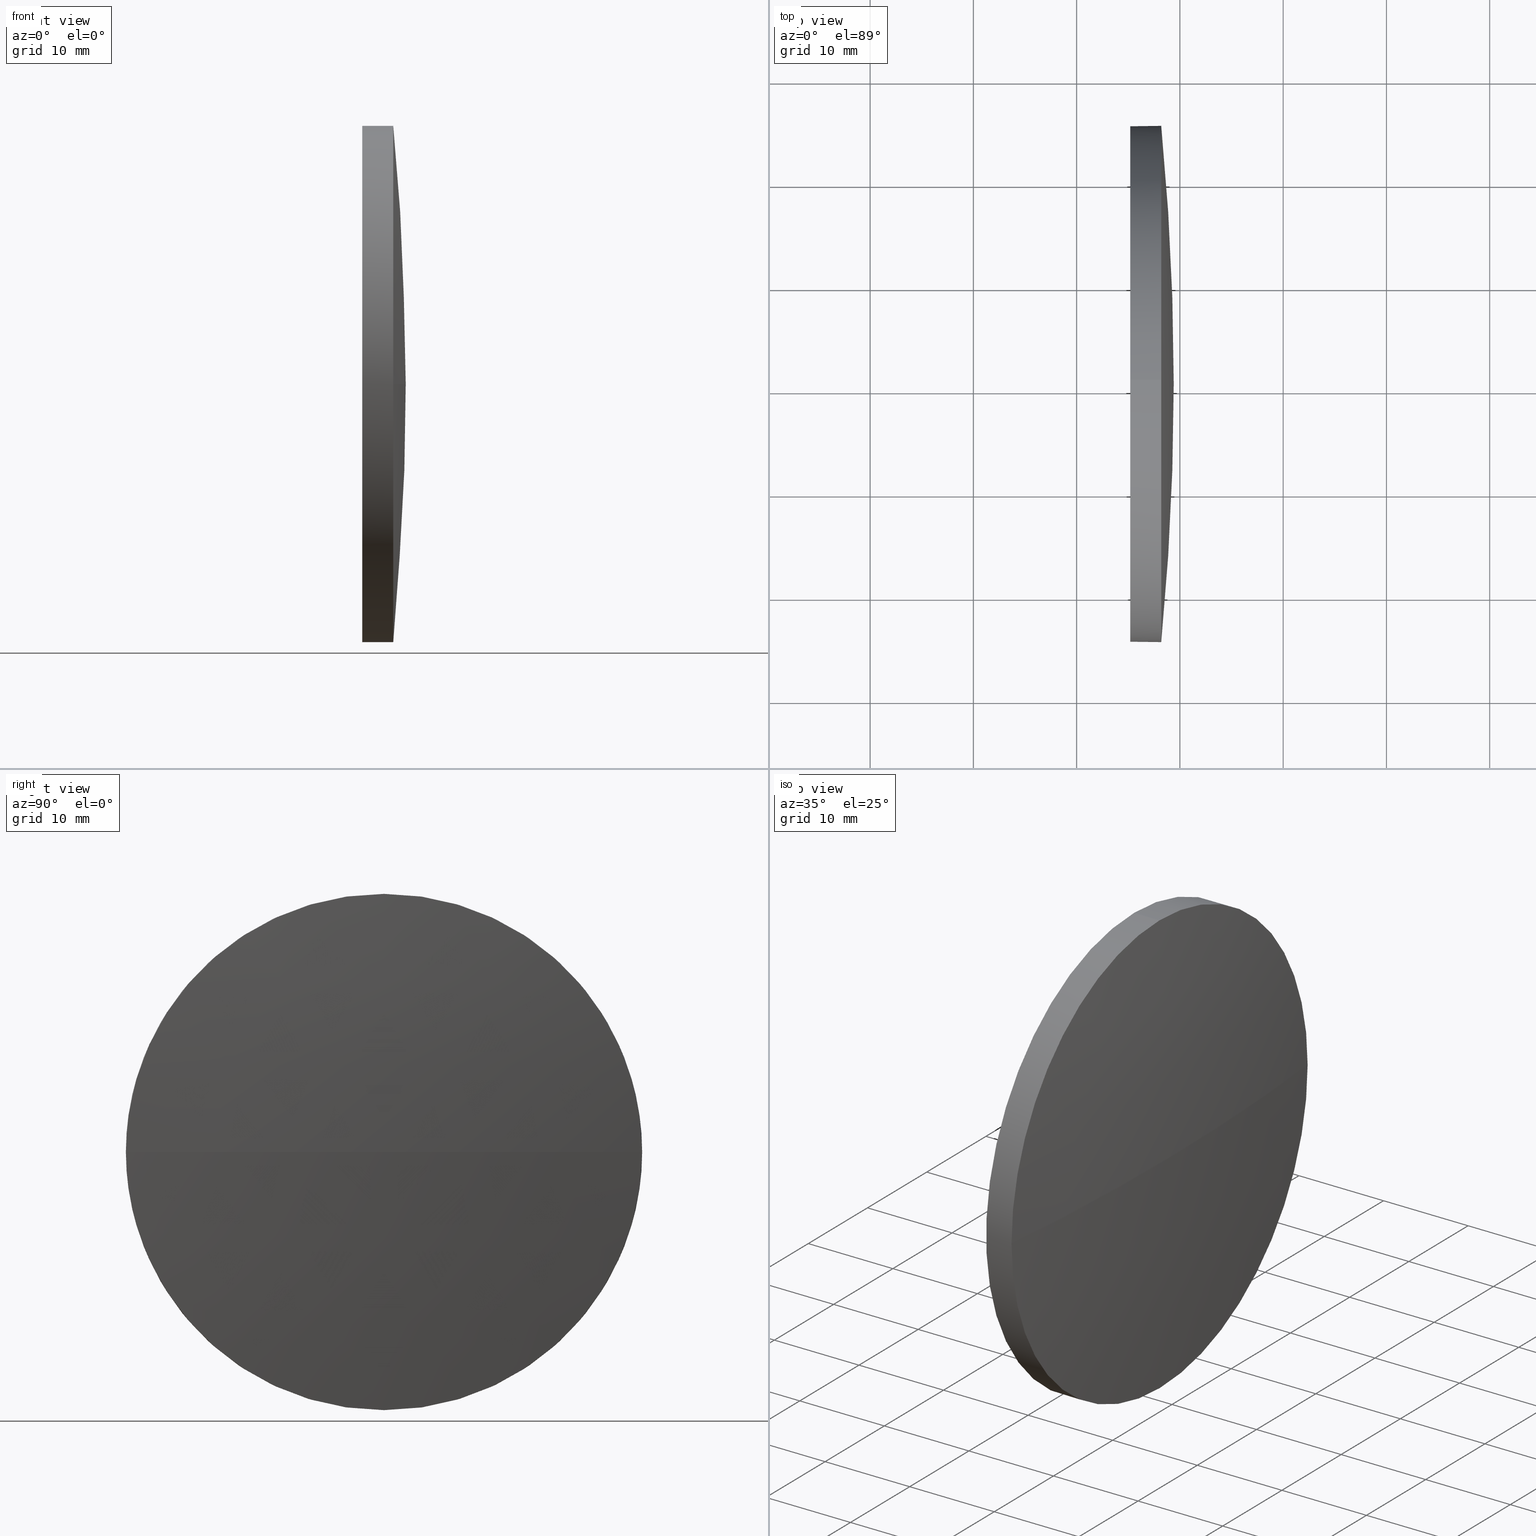
[diagram: canonical four-view strip — front | top / right | iso, engineering-drawing reading convention]
A machine part, canonical four-view strip (front | top / right | iso — engineering-drawing reading convention). The complete STEP part file that produces these views, byte-faithful:
ISO-10303-21;
HEADER;
FILE_DESCRIPTION (( 'STEP AP214' ),
    '1' );
FILE_NAME ('100243.STEP',
    '2019-05-28T08:29:54',
    ( '' ),
    ( '' ),
    'SwSTEP 2.0',
    'SolidWorks 2016',
    '' );
FILE_SCHEMA (( 'AUTOMOTIVE_DESIGN' ));
ENDSEC;

DATA;
#1 = CARTESIAN_POINT ( 'NONE',  ( 511.2199765580103300, 110.4965729746752500, 0.0000000000000000000 ) ) ;
#2 = PRODUCT ( '100243', '100243', '', ( #182 ) ) ;
#3 = EDGE_CURVE ( 'NONE', #35, #85, #21, .T. ) ;
#4 = PRESENTATION_STYLE_ASSIGNMENT (( #22 ) ) ;
#5 = CARTESIAN_POINT ( 'NONE',  ( 515.1917518471264000, 110.4965729746752500, -24.99999999999999300 ) ) ;
#6 = CLOSED_SHELL ( 'NONE', ( #53, #126, #16, #72, #67 ) ) ;
#7 = CARTESIAN_POINT ( 'NONE',  ( 260.5322890372076500, 110.4965729746749600, 0.0000000000000000000 ) ) ;
#8 = PRODUCT_DEFINITION_SHAPE ( 'NONE', 'NONE',  #55 ) ;
#9 =( NAMED_UNIT ( * ) SI_UNIT ( $, .STERADIAN. ) SOLID_ANGLE_UNIT ( ) );
#10 = SURFACE_STYLE_FILL_AREA ( #59 ) ;
#11 = CARTESIAN_POINT ( 'NONE',  ( 518.1917518471264000, 110.4965729746752500, 24.99999999999999300 ) ) ;
#12 = AXIS2_PLACEMENT_3D ( 'NONE', #1, #71, #114 ) ;
#13 = ORIENTED_EDGE ( 'NONE', *, *, #94, .F. ) ;
#14 = AXIS2_PLACEMENT_3D ( 'NONE', #7, #118, #73 ) ;
#15 = COLOUR_RGB ( '',1.000000000000000000, 1.000000000000000000, 1.000000000000000000 ) ;
#16 = ADVANCED_FACE ( 'NONE', ( #60 ), #139, .T. ) ;
#17 = ORIENTED_EDGE ( 'NONE', *, *, #94, .T. ) ;
#18 = DIRECTION ( 'NONE',  ( 0.0000000000000000000, 0.0000000000000000000, 1.000000000000000000 ) ) ;
#19 = LINE ( 'NONE', #129, #119 ) ;
#20 = DIRECTION ( 'NONE',  ( -0.0000000000000000000, 0.0000000000000000000, -1.000000000000000000 ) ) ;
#21 = CIRCLE ( 'NONE', #89, 24.99999999999999300 ) ;
#22 = SURFACE_STYLE_USAGE ( .BOTH. , #45 ) ;
#23 = DIRECTION ( 'NONE',  ( -1.000000000000000000, -0.0000000000000000000, -0.0000000000000000000 ) ) ;
#24 = SURFACE_STYLE_USAGE ( .BOTH. , #58 ) ;
#25 = CIRCLE ( 'NONE', #110, 24.99999999999999300 ) ;
#26 = COLOUR_RGB ( '',1.000000000000000000, 1.000000000000000000, 1.000000000000000000 ) ;
#27 = STYLED_ITEM ( 'NONE', ( #4 ), #75 ) ;
#28 = CARTESIAN_POINT ( 'NONE',  ( 515.1917518471264000, 110.4965729746752500, 0.0000000000000000000 ) ) ;
#29 = AXIS2_PLACEMENT_3D ( 'NONE', #77, #32, #158 ) ;
#30 = ORIENTED_EDGE ( 'NONE', *, *, #160, .T. ) ;
#31 = PRESENTATION_STYLE_ASSIGNMENT (( #24 ) ) ;
#32 = DIRECTION ( 'NONE',  ( -1.000000000000000000, -0.0000000000000000000, -0.0000000000000000000 ) ) ;
#33 = DIRECTION ( 'NONE',  ( 0.0000000000000000000, 1.224646799147353200E-016, -1.000000000000000000 ) ) ;
#34 = APPLICATION_CONTEXT ( 'automotive_design' ) ;
#35 = VERTEX_POINT ( 'NONE', #86 ) ;
#36 = PRESENTATION_LAYER_ASSIGNMENT (  '', '', ( #27 ) ) ;
#37 =( LENGTH_UNIT ( ) NAMED_UNIT ( * ) SI_UNIT ( .MILLI., .METRE. ) );
#38 = ORIENTED_EDGE ( 'NONE', *, *, #69, .F. ) ;
#39 = DIRECTION ( 'NONE',  ( -1.000000000000000000, -0.0000000000000000000, -0.0000000000000000000 ) ) ;
#40 = DIRECTION ( 'NONE',  ( -0.0000000000000000000, 0.0000000000000000000, -1.000000000000000000 ) ) ;
#41 = CARTESIAN_POINT ( 'NONE',  ( 511.2199765580103300, 110.4965729746752500, 0.0000000000000000000 ) ) ;
#42 = CARTESIAN_POINT ( 'NONE',  ( 519.4017518471263200, 110.4965729746749800, 0.0000000000000000000 ) ) ;
#43 = FILL_AREA_STYLE ('',( #107 ) ) ;
#44 = EDGE_LOOP ( 'NONE', ( #112, #144 ) ) ;
#45 = SURFACE_SIDE_STYLE ('',( #80 ) ) ;
#46 = AXIS2_PLACEMENT_3D ( 'NONE', #177, #111, #151 ) ;
#47 = ORIENTED_EDGE ( 'NONE', *, *, #51, .F. ) ;
#48 = AXIS2_PLACEMENT_3D ( 'NONE', #125, #40, #157 ) ;
#49 = UNCERTAINTY_MEASURE_WITH_UNIT (LENGTH_MEASURE( 1.000000000000000100E-005 ), #37, 'distance_accuracy_value', 'NONE');
#50 = ORIENTED_EDGE ( 'NONE', *, *, #96, .T. ) ;
#51 = EDGE_CURVE ( 'NONE', #68, #141, #101, .T. ) ;
#52 = ORIENTED_EDGE ( 'NONE', *, *, #152, .T. ) ;
#53 = ADVANCED_FACE ( 'NONE', ( #64 ), #54, .T. ) ;
#54 = CYLINDRICAL_SURFACE ( 'NONE', #65, 24.99999999999999300 ) ;
#55 = PRODUCT_DEFINITION ( 'δ֪', '', #178, #166 ) ;
#56 = DIRECTION ( 'NONE',  ( 0.0000000000000000000, 0.0000000000000000000, 1.000000000000000000 ) ) ;
#57 = CARTESIAN_POINT ( 'NONE',  ( 518.1917518471264000, 110.4965729746752500, 0.0000000000000000000 ) ) ;
#58 = SURFACE_SIDE_STYLE ('',( #10 ) ) ;
#59 = FILL_AREA_STYLE ('',( #147 ) ) ;
#60 = FACE_OUTER_BOUND ( 'NONE', #61, .T. ) ;
#61 = EDGE_LOOP ( 'NONE', ( #184, #52, #13, #127 ) ) ;
#62 = DIRECTION ( 'NONE',  ( -1.000000000000000000, -0.0000000000000000000, -0.0000000000000000000 ) ) ;
#63 =( NAMED_UNIT ( * ) PLANE_ANGLE_UNIT ( ) SI_UNIT ( $, .RADIAN. ) );
#64 = FACE_OUTER_BOUND ( 'NONE', #138, .T. ) ;
#65 = AXIS2_PLACEMENT_3D ( 'NONE', #41, #39, #56 ) ;
#66 = CIRCLE ( 'NONE', #79, 258.8694628099187300 ) ;
#67 = ADVANCED_FACE ( 'NONE', ( #98 ), #174, .F. ) ;
#68 = VERTEX_POINT ( 'NONE', #5 ) ;
#69 = EDGE_CURVE ( 'NONE', #185, #172, #165, .T. ) ;
#70 = ORIENTED_EDGE ( 'NONE', *, *, #183, .T. ) ;
#71 = DIRECTION ( 'NONE',  ( -1.000000000000000000, -0.0000000000000000000, -0.0000000000000000000 ) ) ;
#72 = ADVANCED_FACE ( 'NONE', ( #168 ), #115, .T. ) ;
#73 = DIRECTION ( 'NONE',  ( 1.000000000000000000, 0.0000000000000000000, 0.0000000000000000000 ) ) ;
#74 = EDGE_CURVE ( 'NONE', #141, #68, #123, .T. ) ;
#75 = MANIFOLD_SOLID_BREP ( '��ת1', #6 ) ;
#76 =( LENGTH_UNIT ( ) NAMED_UNIT ( * ) SI_UNIT ( .MILLI., .METRE. ) );
#77 = CARTESIAN_POINT ( 'NONE',  ( 518.1917518471264000, 110.4965729746752500, 0.0000000000000000000 ) ) ;
#78 = CARTESIAN_POINT ( 'NONE',  ( 515.1917518471264000, 110.4965729746752500, 24.99999999999999300 ) ) ;
#79 = AXIS2_PLACEMENT_3D ( 'NONE', #176, #33, #146 ) ;
#80 = SURFACE_STYLE_FILL_AREA ( #43 ) ;
#81 = MECHANICAL_DESIGN_GEOMETRIC_PRESENTATION_REPRESENTATION (  '', ( #27 ), #170 ) ;
#82 = APPLICATION_CONTEXT ( 'automotive_design' ) ;
#83 = UNCERTAINTY_MEASURE_WITH_UNIT (LENGTH_MEASURE( 1.000000000000000100E-005 ), #148, 'distance_accuracy_value', 'NONE');
#84 = SPHERICAL_SURFACE ( 'NONE', #142, 258.8694628099187300 ) ;
#85 = VERTEX_POINT ( 'NONE', #11 ) ;
#86 = CARTESIAN_POINT ( 'NONE',  ( 518.1917518471264000, 85.49657297467511800, -3.061616997868366500E-015 ) ) ;
#87 = ORIENTED_EDGE ( 'NONE', *, *, #74, .F. ) ;
#88 = CARTESIAN_POINT ( 'NONE',  ( 515.1917518471264000, 110.4965729746752500, 0.0000000000000000000 ) ) ;
#89 = AXIS2_PLACEMENT_3D ( 'NONE', #173, #102, #18 ) ;
#90 = CARTESIAN_POINT ( 'NONE',  ( 518.1917518471264000, 110.4965729746752500, 0.0000000000000000000 ) ) ;
#91 = CARTESIAN_POINT ( 'NONE',  ( 518.1917518471264000, 135.4965729746751000, 0.0000000000000000000 ) ) ;
#92 = CARTESIAN_POINT ( 'NONE',  ( 518.1917518471264000, 110.4965729746752500, -24.99999999999999300 ) ) ;
#93 = EDGE_LOOP ( 'NONE', ( #120, #30, #159, #50, #47 ) ) ;
#94 = EDGE_CURVE ( 'NONE', #85, #185, #25, .T. ) ;
#95 = APPLICATION_PROTOCOL_DEFINITION ( 'draft international standard', 'automotive_design', 1998, #82 ) ;
#96 = EDGE_CURVE ( 'NONE', #85, #141, #19, .T. ) ;
#97 = UNCERTAINTY_MEASURE_WITH_UNIT (LENGTH_MEASURE( 1.000000000000000100E-005 ), #76, 'distance_accuracy_value', 'NONE');
#98 = FACE_OUTER_BOUND ( 'NONE', #44, .T. ) ;
#99 = STYLED_ITEM ( 'NONE', ( #31 ), #133 ) ;
#100 = PRESENTATION_LAYER_ASSIGNMENT (  '', '', ( #99 ) ) ;
#101 = CIRCLE ( 'NONE', #105, 24.99999999999999300 ) ;
#102 = DIRECTION ( 'NONE',  ( -1.000000000000000000, -0.0000000000000000000, -0.0000000000000000000 ) ) ;
#103 = DIRECTION ( 'NONE',  ( 1.000000000000000000, 0.0000000000000000000, 0.0000000000000000000 ) ) ;
#104 = CIRCLE ( 'NONE', #14, 258.8694628099186700 ) ;
#105 = AXIS2_PLACEMENT_3D ( 'NONE', #28, #155, #154 ) ;
#106 = DIRECTION ( 'NONE',  ( 0.0000000000000000000, 0.0000000000000000000, 1.000000000000000000 ) ) ;
#107 = FILL_AREA_STYLE_COLOUR ( '', #15 ) ;
#108 = ORIENTED_EDGE ( 'NONE', *, *, #160, .F. ) ;
#109 = CARTESIAN_POINT ( 'NONE',  ( 515.1917518471264000, 110.4965729746752500, 0.0000000000000000000 ) ) ;
#110 = AXIS2_PLACEMENT_3D ( 'NONE', #90, #62, #106 ) ;
#111 = DIRECTION ( 'NONE',  ( 0.0000000000000000000, 0.0000000000000000000, 1.000000000000000000 ) ) ;
#112 = ORIENTED_EDGE ( 'NONE', *, *, #74, .T. ) ;
#113 = MECHANICAL_DESIGN_GEOMETRIC_PRESENTATION_REPRESENTATION (  '', ( #99 ), #124 ) ;
#114 = DIRECTION ( 'NONE',  ( 0.0000000000000000000, 0.0000000000000000000, 1.000000000000000000 ) ) ;
#115 = CYLINDRICAL_SURFACE ( 'NONE', #12, 24.99999999999999300 ) ;
#116 = DIRECTION ( 'NONE',  ( 0.0000000000000000000, 0.0000000000000000000, -1.000000000000000000 ) ) ;
#117 = DIRECTION ( 'NONE',  ( 0.0000000000000000000, 1.000000000000000000, 0.0000000000000000000 ) ) ;
#118 = DIRECTION ( 'NONE',  ( -0.0000000000000000000, 0.0000000000000000000, 1.000000000000000000 ) ) ;
#119 = VECTOR ( 'NONE', #145, 1000.000000000000000 ) ;
#120 = ORIENTED_EDGE ( 'NONE', *, *, #149, .F. ) ;
#121 = DIRECTION ( 'NONE',  ( 0.0000000000000000000, 0.0000000000000000000, 1.000000000000000000 ) ) ;
#122 = ORIENTED_EDGE ( 'NONE', *, *, #96, .F. ) ;
#123 = CIRCLE ( 'NONE', #186, 24.99999999999999300 ) ;
#124 =( GEOMETRIC_REPRESENTATION_CONTEXT ( 3 ) GLOBAL_UNCERTAINTY_ASSIGNED_CONTEXT ( ( #49 ) ) GLOBAL_UNIT_ASSIGNED_CONTEXT ( ( #37, #63, #136 ) ) REPRESENTATION_CONTEXT ( 'NONE', 'WORKASPACE' ) );
#125 = CARTESIAN_POINT ( 'NONE',  ( 260.5322890372076500, 110.4965729746749600, 0.0000000000000000000 ) ) ;
#126 = ADVANCED_FACE ( 'NONE', ( #143 ), #84, .T. ) ;
#127 = ORIENTED_EDGE ( 'NONE', *, *, #3, .F. ) ;
#128 = SHAPE_DEFINITION_REPRESENTATION ( #8, #133 ) ;
#129 = CARTESIAN_POINT ( 'NONE',  ( 511.2199765580103300, 110.4965729746752500, 24.99999999999999300 ) ) ;
#130 = CIRCLE ( 'NONE', #29, 24.99999999999999300 ) ;
#131 = CARTESIAN_POINT ( 'NONE',  ( 511.2199765580103300, 110.4965729746752500, -24.99999999999999300 ) ) ;
#132 = APPLICATION_PROTOCOL_DEFINITION ( 'draft international standard', 'automotive_design', 1998, #34 ) ;
#133 = ADVANCED_BREP_SHAPE_REPRESENTATION ( '100243', ( #75, #46 ), #167 ) ;
#134 = DIRECTION ( 'NONE',  ( 0.0000000000000000000, 0.0000000000000000000, 1.000000000000000000 ) ) ;
#135 = ORIENTED_EDGE ( 'NONE', *, *, #152, .F. ) ;
#136 =( NAMED_UNIT ( * ) SI_UNIT ( $, .STERADIAN. ) SOLID_ANGLE_UNIT ( ) );
#137 = VECTOR ( 'NONE', #181, 1000.000000000000000 ) ;
#138 = EDGE_LOOP ( 'NONE', ( #153, #169, #87, #122, #17 ) ) ;
#139 = SPHERICAL_SURFACE ( 'NONE', #48, 258.8694628099187300 ) ;
#140 = PRODUCT_RELATED_PRODUCT_CATEGORY ( 'part', '', ( #2 ) ) ;
#141 = VERTEX_POINT ( 'NONE', #78 ) ;
#142 = AXIS2_PLACEMENT_3D ( 'NONE', #164, #20, #117 ) ;
#143 = FACE_OUTER_BOUND ( 'NONE', #150, .T. ) ;
#144 = ORIENTED_EDGE ( 'NONE', *, *, #51, .T. ) ;
#145 = DIRECTION ( 'NONE',  ( -1.000000000000000000, -0.0000000000000000000, -0.0000000000000000000 ) ) ;
#146 = DIRECTION ( 'NONE',  ( 0.0000000000000000000, 1.000000000000000000, 1.224646799147353500E-016 ) ) ;
#147 = FILL_AREA_STYLE_COLOUR ( '', #26 ) ;
#148 =( LENGTH_UNIT ( ) NAMED_UNIT ( * ) SI_UNIT ( .MILLI., .METRE. ) );
#149 = EDGE_CURVE ( 'NONE', #172, #68, #171, .T. ) ;
#150 = EDGE_LOOP ( 'NONE', ( #135, #70, #108, #38 ) ) ;
#151 = DIRECTION ( 'NONE',  ( 1.000000000000000000, 0.0000000000000000000, 0.0000000000000000000 ) ) ;
#152 = EDGE_CURVE ( 'NONE', #180, #185, #104, .T. ) ;
#153 = ORIENTED_EDGE ( 'NONE', *, *, #69, .T. ) ;
#154 = DIRECTION ( 'NONE',  ( 0.0000000000000000000, 0.0000000000000000000, 1.000000000000000000 ) ) ;
#155 = DIRECTION ( 'NONE',  ( -1.000000000000000000, -0.0000000000000000000, -0.0000000000000000000 ) ) ;
#156 = AXIS2_PLACEMENT_3D ( 'NONE', #57, #179, #121 ) ;
#157 = DIRECTION ( 'NONE',  ( 0.0000000000000000000, 1.000000000000000000, 0.0000000000000000000 ) ) ;
#158 = DIRECTION ( 'NONE',  ( 0.0000000000000000000, 0.0000000000000000000, 1.000000000000000000 ) ) ;
#159 = ORIENTED_EDGE ( 'NONE', *, *, #3, .T. ) ;
#160 = EDGE_CURVE ( 'NONE', #172, #35, #130, .T. ) ;
#161 =( NAMED_UNIT ( * ) PLANE_ANGLE_UNIT ( ) SI_UNIT ( $, .RADIAN. ) );
#162 =( NAMED_UNIT ( * ) SI_UNIT ( $, .STERADIAN. ) SOLID_ANGLE_UNIT ( ) );
#163 = AXIS2_PLACEMENT_3D ( 'NONE', #88, #103, #116 ) ;
#164 = CARTESIAN_POINT ( 'NONE',  ( 260.5322890372076500, 110.4965729746749600, 0.0000000000000000000 ) ) ;
#165 = CIRCLE ( 'NONE', #156, 24.99999999999999300 ) ;
#166 = PRODUCT_DEFINITION_CONTEXT ( 'detailed design', #82, 'design' ) ;
#167 =( GEOMETRIC_REPRESENTATION_CONTEXT ( 3 ) GLOBAL_UNCERTAINTY_ASSIGNED_CONTEXT ( ( #97 ) ) GLOBAL_UNIT_ASSIGNED_CONTEXT ( ( #76, #161, #9 ) ) REPRESENTATION_CONTEXT ( 'NONE', 'WORKASPACE' ) );
#168 = FACE_OUTER_BOUND ( 'NONE', #93, .T. ) ;
#169 = ORIENTED_EDGE ( 'NONE', *, *, #149, .T. ) ;
#170 =( GEOMETRIC_REPRESENTATION_CONTEXT ( 3 ) GLOBAL_UNCERTAINTY_ASSIGNED_CONTEXT ( ( #83 ) ) GLOBAL_UNIT_ASSIGNED_CONTEXT ( ( #148, #175, #162 ) ) REPRESENTATION_CONTEXT ( 'NONE', 'WORKASPACE' ) );
#171 = LINE ( 'NONE', #131, #137 ) ;
#172 = VERTEX_POINT ( 'NONE', #92 ) ;
#173 = CARTESIAN_POINT ( 'NONE',  ( 518.1917518471264000, 110.4965729746752500, 0.0000000000000000000 ) ) ;
#174 = PLANE ( 'NONE',  #163 ) ;
#175 =( NAMED_UNIT ( * ) PLANE_ANGLE_UNIT ( ) SI_UNIT ( $, .RADIAN. ) );
#176 = CARTESIAN_POINT ( 'NONE',  ( 260.5322890372076500, 110.4965729746749600, 0.0000000000000000000 ) ) ;
#177 = CARTESIAN_POINT ( 'NONE',  ( 0.0000000000000000000, 0.0000000000000000000, 0.0000000000000000000 ) ) ;
#178 = PRODUCT_DEFINITION_FORMATION_WITH_SPECIFIED_SOURCE ( '�κ�', '', #2, .NOT_KNOWN. ) ;
#179 = DIRECTION ( 'NONE',  ( -1.000000000000000000, -0.0000000000000000000, -0.0000000000000000000 ) ) ;
#180 = VERTEX_POINT ( 'NONE', #42 ) ;
#181 = DIRECTION ( 'NONE',  ( -1.000000000000000000, -0.0000000000000000000, -0.0000000000000000000 ) ) ;
#182 = PRODUCT_CONTEXT ( 'NONE', #34, 'mechanical' ) ;
#183 = EDGE_CURVE ( 'NONE', #180, #35, #66, .T. ) ;
#184 = ORIENTED_EDGE ( 'NONE', *, *, #183, .F. ) ;
#185 = VERTEX_POINT ( 'NONE', #91 ) ;
#186 = AXIS2_PLACEMENT_3D ( 'NONE', #109, #23, #134 ) ;
ENDSEC;
END-ISO-10303-21;
